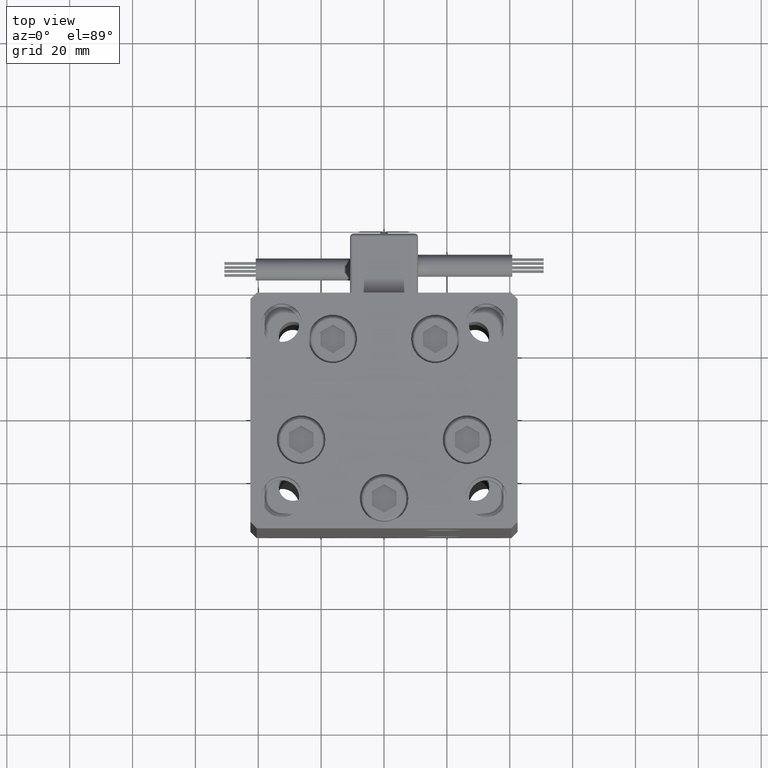
[diagram: clean part render]
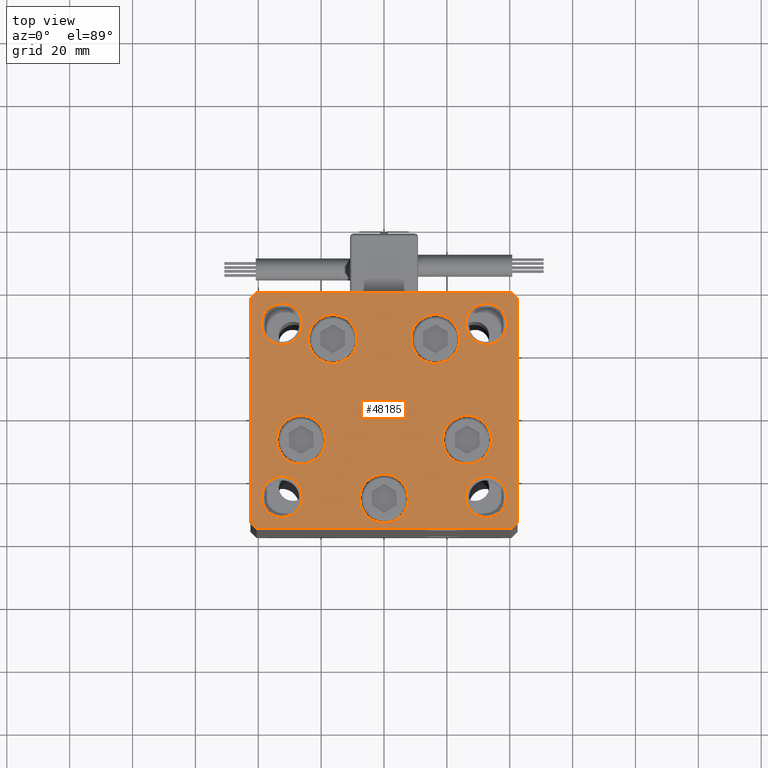
[diagram: same view with one face highlighted and labeled with its STEP entity id]
A machine part, top view. The second image highlights one B-rep face of the part: STEP entity #48185.
In plain terms, the highlighted planar face has unit normal (0, 0, 1).
Its self-contained STEP definition (entity closure, byte-faithful):
#836 = VECTOR ( 'NONE', #3303, 1000.000000000000000 ) ;
#936 = DIRECTION ( 'NONE',  ( 1.000000000000000000, 0.000000000000000000, 0.000000000000000000 ) ) ;
#1135 = DIRECTION ( 'NONE',  ( 0.000000000000000000, -0.000000000000000000, -1.000000000000000000 ) ) ;
#1215 = AXIS2_PLACEMENT_3D ( 'NONE', #31482, #10410, #51187 ) ;
#1286 = ORIENTED_EDGE ( 'NONE', *, *, #23813, .F. ) ;
#1360 = CIRCLE ( 'NONE', #3922, 7.750000000000003553 ) ;
#1438 = AXIS2_PLACEMENT_3D ( 'NONE', #26076, #12776, #41797 ) ;
#1818 = FACE_BOUND ( 'NONE', #10416, .T. ) ;
#1828 = ORIENTED_EDGE ( 'NONE', *, *, #33216, .F. ) ;
#1998 = AXIS2_PLACEMENT_3D ( 'NONE', #46790, #10534, #46258 ) ;
#2179 = AXIS2_PLACEMENT_3D ( 'NONE', #37613, #1135, #50132 ) ;
#2203 = CARTESIAN_POINT ( 'NONE',  ( 42.49999999999992895, 35.50000000000000000, 0.000000000000000000 ) ) ;
#2340 = CIRCLE ( 'NONE', #31270, 7.750000000000000000 ) ;
#2352 = FACE_BOUND ( 'NONE', #44218, .T. ) ;
#2417 = CARTESIAN_POINT ( 'NONE',  ( 26.00000000000000355, -27.49999999999999645, 0.000000000000000000 ) ) ;
#2430 = EDGE_CURVE ( 'NONE', #50446, #17747, #15570, .T. ) ;
#2929 = EDGE_CURVE ( 'NONE', #12566, #20203, #10864, .T. ) ;
#3120 = CARTESIAN_POINT ( 'NONE',  ( -40.50000000000000711, 37.49999999999997868, 0.000000000000000000 ) ) ;
#3303 = DIRECTION ( 'NONE',  ( -1.000000000000000000, -3.426614273534436165E-16, 0.000000000000000000 ) ) ;
#3335 = EDGE_CURVE ( 'NONE', #17747, #39653, #16356, .T. ) ;
#3365 = CARTESIAN_POINT ( 'NONE',  ( 8.572913342905422951, 22.75000000000000000, 0.000000000000000000 ) ) ;
#3629 = CARTESIAN_POINT ( 'NONE',  ( -26.00000000000000355, -27.49999999999999645, 0.000000000000000000 ) ) ;
#3634 = DIRECTION ( 'NONE',  ( 0.000000000000000000, 0.000000000000000000, 1.000000000000000000 ) ) ;
#3922 = AXIS2_PLACEMENT_3D ( 'NONE', #22616, #6640, #35679 ) ;
#3958 = DIRECTION ( 'NONE',  ( 1.000000000000000000, 0.000000000000000000, 0.000000000000000000 ) ) ;
#4627 = EDGE_CURVE ( 'NONE', #5981, #51584, #52368, .T. ) ;
#4935 = EDGE_LOOP ( 'NONE', ( #35485, #10321 ) ) ;
#5246 = AXIS2_PLACEMENT_3D ( 'NONE', #48631, #29423, #12649 ) ;
#5391 = ORIENTED_EDGE ( 'NONE', *, *, #8655, .F. ) ;
#5981 = VERTEX_POINT ( 'NONE', #7321 ) ;
#6162 = CARTESIAN_POINT ( 'NONE',  ( 24.07291334290542650, 22.75000000000000000, 0.000000000000000000 ) ) ;
#6198 = DIRECTION ( 'NONE',  ( -0.7071067811865463515, -0.7071067811865487940, 0.000000000000000000 ) ) ;
#6299 = EDGE_CURVE ( 'NONE', #34208, #50446, #52016, .T. ) ;
#6520 = DIRECTION ( 'NONE',  ( 1.000000000000000000, 0.000000000000000000, 0.000000000000000000 ) ) ;
#6624 = CARTESIAN_POINT ( 'NONE',  ( -39.00000000000000000, -27.49999999999999645, 0.000000000000000000 ) ) ;
#6636 = CARTESIAN_POINT ( 'NONE',  ( 32.50000000000000000, -27.49999999999999645, 0.000000000000000000 ) ) ;
#6640 = DIRECTION ( 'NONE',  ( 0.000000000000000000, -0.000000000000000000, -1.000000000000000000 ) ) ;
#6772 = DIRECTION ( 'NONE',  ( 1.000000000000000000, 0.000000000000000000, 0.000000000000000000 ) ) ;
#7162 = DIRECTION ( 'NONE',  ( 0.000000000000000000, 0.000000000000000000, 1.000000000000000000 ) ) ;
#7321 = CARTESIAN_POINT ( 'NONE',  ( 34.14865316429776954, -9.333333333333328596, 0.000000000000000000 ) ) ;
#7749 = EDGE_CURVE ( 'NONE', #49026, #17196, #2340, .T. ) ;
#7968 = DIRECTION ( 'NONE',  ( 1.000000000000000000, 0.000000000000000000, 0.000000000000000000 ) ) ;
#8028 = VECTOR ( 'NONE', #48085, 1000.000000000000000 ) ;
#8206 = CARTESIAN_POINT ( 'NONE',  ( 39.00000000000000000, 27.49999999999999645, 0.000000000000000000 ) ) ;
#8230 = EDGE_CURVE ( 'NONE', #17196, #49026, #40608, .T. ) ;
#8423 = EDGE_CURVE ( 'NONE', #42111, #46013, #43165, .T. ) ;
#8655 = EDGE_CURVE ( 'NONE', #49922, #46514, #43206, .T. ) ;
#9416 = VERTEX_POINT ( 'NONE', #3120 ) ;
#9484 = AXIS2_PLACEMENT_3D ( 'NONE', #35269, #39534, #6772 ) ;
#9771 = FACE_BOUND ( 'NONE', #18264, .T. ) ;
#10182 = CARTESIAN_POINT ( 'NONE',  ( -40.50000000000000711, 37.49999999999997868, 0.000000000000000000 ) ) ;
#10321 = ORIENTED_EDGE ( 'NONE', *, *, #38664, .F. ) ;
#10345 = LINE ( 'NONE', #22609, #46730 ) ;
#10410 = DIRECTION ( 'NONE',  ( 0.000000000000000000, -0.000000000000000000, -1.000000000000000000 ) ) ;
#10416 = EDGE_LOOP ( 'NONE', ( #49768, #30474 ) ) ;
#10429 = EDGE_CURVE ( 'NONE', #41803, #32636, #20259, .T. ) ;
#10534 = DIRECTION ( 'NONE',  ( 0.000000000000000000, -0.000000000000000000, -1.000000000000000000 ) ) ;
#10864 = LINE ( 'NONE', #48426, #48900 ) ;
#10976 = DIRECTION ( 'NONE',  ( 0.7071067811865474617, 0.7071067811865474617, 0.000000000000000000 ) ) ;
#11166 = CARTESIAN_POINT ( 'NONE',  ( -40.49999999999999289, -37.50000000000002132, 0.000000000000000000 ) ) ;
#11400 = DIRECTION ( 'NONE',  ( 1.000000000000000000, 0.000000000000000000, 0.000000000000000000 ) ) ;
#11744 = VERTEX_POINT ( 'NONE', #3629 ) ;
#11795 = CIRCLE ( 'NONE', #48396, 6.499999999999999112 ) ;
#12179 = CARTESIAN_POINT ( 'NONE',  ( 39.00000000000000000, -27.49999999999999645, 0.000000000000000000 ) ) ;
#12325 = VERTEX_POINT ( 'NONE', #21029 ) ;
#12364 = EDGE_LOOP ( 'NONE', ( #47605, #17339 ) ) ;
#12566 = VERTEX_POINT ( 'NONE', #28627 ) ;
#12649 = DIRECTION ( 'NONE',  ( 1.000000000000000000, 0.000000000000000000, 0.000000000000000000 ) ) ;
#12653 = EDGE_CURVE ( 'NONE', #46514, #49922, #13515, .T. ) ;
#12776 = DIRECTION ( 'NONE',  ( 0.000000000000000000, 0.000000000000000000, 1.000000000000000000 ) ) ;
#12845 = ORIENTED_EDGE ( 'NONE', *, *, #12653, .F. ) ;
#13515 = CIRCLE ( 'NONE', #43322, 6.499999999999999112 ) ;
#13553 = AXIS2_PLACEMENT_3D ( 'NONE', #28710, #24718, #52708 ) ;
#13964 = DIRECTION ( 'NONE',  ( 0.000000000000000000, 0.000000000000000000, 1.000000000000000000 ) ) ;
#14243 = AXIS2_PLACEMENT_3D ( 'NONE', #31337, #3634, #15068 ) ;
#14248 = EDGE_CURVE ( 'NONE', #9416, #26770, #18164, .T. ) ;
#14609 = DIRECTION ( 'NONE',  ( 1.000000000000000000, 1.713307136767217096E-16, 0.000000000000000000 ) ) ;
#15027 = EDGE_LOOP ( 'NONE', ( #41603, #38810 ) ) ;
#15068 = DIRECTION ( 'NONE',  ( 1.000000000000000000, 0.000000000000000000, 0.000000000000000000 ) ) ;
#15136 = DIRECTION ( 'NONE',  ( 0.000000000000000000, -0.000000000000000000, -1.000000000000000000 ) ) ;
#15570 = LINE ( 'NONE', #26766, #8028 ) ;
#16016 = VECTOR ( 'NONE', #6198, 1000.000000000000000 ) ;
#16328 = EDGE_CURVE ( 'NONE', #20203, #34208, #10345, .T. ) ;
#16356 = LINE ( 'NONE', #24891, #46348 ) ;
#16427 = EDGE_CURVE ( 'NONE', #45827, #12325, #21196, .T. ) ;
#16450 = VERTEX_POINT ( 'NONE', #8206 ) ;
#17163 = ORIENTED_EDGE ( 'NONE', *, *, #32988, .T. ) ;
#17184 = ORIENTED_EDGE ( 'NONE', *, *, #49495, .T. ) ;
#17196 = VERTEX_POINT ( 'NONE', #40130 ) ;
#17339 = ORIENTED_EDGE ( 'NONE', *, *, #23635, .T. ) ;
#17346 = AXIS2_PLACEMENT_3D ( 'NONE', #21822, #17817, #29038 ) ;
#17470 = DIRECTION ( 'NONE',  ( 1.000000000000000000, 0.000000000000000000, 0.000000000000000000 ) ) ;
#17747 = VERTEX_POINT ( 'NONE', #2203 ) ;
#17817 = DIRECTION ( 'NONE',  ( 0.000000000000000000, 0.000000000000000000, 1.000000000000000000 ) ) ;
#17958 = CARTESIAN_POINT ( 'NONE',  ( 32.50000000000000000, -27.49999999999999645, 0.000000000000000000 ) ) ;
#18164 = LINE ( 'NONE', #10182, #16016 ) ;
#18264 = EDGE_LOOP ( 'NONE', ( #1286, #1828 ) ) ;
#18527 = CARTESIAN_POINT ( 'NONE',  ( 3.429011037612589276E-15, -28.00000000000000000, 0.000000000000000000 ) ) ;
#18560 = FACE_BOUND ( 'NONE', #12364, .T. ) ;
#18827 = FACE_BOUND ( 'NONE', #19609, .T. ) ;
#18918 = CIRCLE ( 'NONE', #42734, 7.750000000000003553 ) ;
#19138 = ORIENTED_EDGE ( 'NONE', *, *, #2430, .T. ) ;
#19609 = EDGE_LOOP ( 'NONE', ( #30417, #28291 ) ) ;
#19680 = DIRECTION ( 'NONE',  ( 0.000000000000000000, 0.000000000000000000, 1.000000000000000000 ) ) ;
#20203 = VERTEX_POINT ( 'NONE', #11166 ) ;
#20259 = CIRCLE ( 'NONE', #50041, 6.499999999999999112 ) ;
#20794 = CARTESIAN_POINT ( 'NONE',  ( -42.50000000000000711, 35.49999999999997158, 0.000000000000000000 ) ) ;
#21029 = CARTESIAN_POINT ( 'NONE',  ( -18.64865316429776954, -9.333333333333335702, 0.000000000000000000 ) ) ;
#21142 = DIRECTION ( 'NONE',  ( 1.000000000000000000, 0.000000000000000000, 0.000000000000000000 ) ) ;
#21155 = CARTESIAN_POINT ( 'NONE',  ( -32.50000000000000000, 27.50000000000000355, 0.000000000000000000 ) ) ;
#21196 = CIRCLE ( 'NONE', #13553, 7.750000000000000000 ) ;
#21822 = CARTESIAN_POINT ( 'NONE',  ( -32.50000000000000000, -27.49999999999999645, 0.000000000000000000 ) ) ;
#21944 = DIRECTION ( 'NONE',  ( 0.000000000000000000, 0.000000000000000000, 1.000000000000000000 ) ) ;
#22146 = VERTEX_POINT ( 'NONE', #6624 ) ;
#22305 = PLANE ( 'NONE',  #29710 ) ;
#22498 = EDGE_CURVE ( 'NONE', #51584, #5981, #24948, .T. ) ;
#22598 = CARTESIAN_POINT ( 'NONE',  ( 26.00000000000000355, 27.49999999999999645, 0.000000000000000000 ) ) ;
#22609 = CARTESIAN_POINT ( 'NONE',  ( -40.49999999999999289, -37.50000000000002132, 0.000000000000000000 ) ) ;
#22616 = CARTESIAN_POINT ( 'NONE',  ( 16.32291334290542295, 22.75000000000000000, 0.000000000000000000 ) ) ;
#22803 = CARTESIAN_POINT ( 'NONE',  ( 42.50000000000000711, -35.50000000000000000, 0.000000000000000000 ) ) ;
#23134 = ORIENTED_EDGE ( 'NONE', *, *, #14248, .T. ) ;
#23306 = CIRCLE ( 'NONE', #1215, 7.750000000000000000 ) ;
#23635 = EDGE_CURVE ( 'NONE', #12325, #45827, #23959, .T. ) ;
#23813 = EDGE_CURVE ( 'NONE', #11744, #22146, #31616, .T. ) ;
#23925 = CARTESIAN_POINT ( 'NONE',  ( 16.32291334290542295, 22.75000000000000000, 0.000000000000000000 ) ) ;
#23959 = CIRCLE ( 'NONE', #5246, 7.750000000000000000 ) ;
#24650 = EDGE_LOOP ( 'NONE', ( #5391, #12845 ) ) ;
#24718 = DIRECTION ( 'NONE',  ( 0.000000000000000000, -0.000000000000000000, -1.000000000000000000 ) ) ;
#24891 = CARTESIAN_POINT ( 'NONE',  ( 42.49999999999992895, 35.50000000000000000, 0.000000000000000000 ) ) ;
#24948 = CIRCLE ( 'NONE', #1998, 7.750000000000000000 ) ;
#25181 = VERTEX_POINT ( 'NONE', #22598 ) ;
#25277 = EDGE_CURVE ( 'NONE', #38391, #43385, #18918, .T. ) ;
#26034 = FACE_OUTER_BOUND ( 'NONE', #39056, .T. ) ;
#26076 = CARTESIAN_POINT ( 'NONE',  ( 32.50000000000000000, 27.49999999999999645, 0.000000000000000000 ) ) ;
#26133 = CIRCLE ( 'NONE', #49118, 6.499999999999999112 ) ;
#26476 = CARTESIAN_POINT ( 'NONE',  ( -39.00000000000000000, 27.50000000000000355, 0.000000000000000000 ) ) ;
#26605 = EDGE_CURVE ( 'NONE', #26770, #12566, #39270, .T. ) ;
#26766 = CARTESIAN_POINT ( 'NONE',  ( 42.50000000000000711, -35.50000000000000000, 0.000000000000000000 ) ) ;
#26770 = VERTEX_POINT ( 'NONE', #20794 ) ;
#26869 = DIRECTION ( 'NONE',  ( 1.000000000000000000, 0.000000000000000000, 0.000000000000000000 ) ) ;
#27649 = ORIENTED_EDGE ( 'NONE', *, *, #8423, .T. ) ;
#28291 = ORIENTED_EDGE ( 'NONE', *, *, #7749, .T. ) ;
#28627 = CARTESIAN_POINT ( 'NONE',  ( -42.50000000000000000, -35.50000000000000711, 0.000000000000000000 ) ) ;
#28710 = CARTESIAN_POINT ( 'NONE',  ( -26.39865316429776954, -9.333333333333337478, 0.000000000000000000 ) ) ;
#28712 = EDGE_LOOP ( 'NONE', ( #17163, #27649 ) ) ;
#28853 = ORIENTED_EDGE ( 'NONE', *, *, #2929, .T. ) ;
#29031 = ORIENTED_EDGE ( 'NONE', *, *, #3335, .T. ) ;
#29038 = DIRECTION ( 'NONE',  ( 1.000000000000000000, 0.000000000000000000, 0.000000000000000000 ) ) ;
#29423 = DIRECTION ( 'NONE',  ( 0.000000000000000000, -0.000000000000000000, -1.000000000000000000 ) ) ;
#29710 = AXIS2_PLACEMENT_3D ( 'NONE', #42289, #38813, #50808 ) ;
#30417 = ORIENTED_EDGE ( 'NONE', *, *, #8230, .T. ) ;
#30474 = ORIENTED_EDGE ( 'NONE', *, *, #25277, .T. ) ;
#30574 = FACE_BOUND ( 'NONE', #15027, .T. ) ;
#30980 = CIRCLE ( 'NONE', #17346, 6.499999999999999112 ) ;
#31270 = AXIS2_PLACEMENT_3D ( 'NONE', #35180, #50894, #21142 ) ;
#31292 = CARTESIAN_POINT ( 'NONE',  ( -42.50000000000000711, 35.49999999999997158, 0.000000000000000000 ) ) ;
#31337 = CARTESIAN_POINT ( 'NONE',  ( -32.50000000000000000, 27.50000000000000355, 0.000000000000000000 ) ) ;
#31482 = CARTESIAN_POINT ( 'NONE',  ( 3.429011037612589276E-15, -28.00000000000000000, 0.000000000000000000 ) ) ;
#31616 = CIRCLE ( 'NONE', #9484, 6.499999999999999112 ) ;
#32621 = DIRECTION ( 'NONE',  ( -0.7071067811865474617, 0.7071067811865474617, 0.000000000000000000 ) ) ;
#32636 = VERTEX_POINT ( 'NONE', #12179 ) ;
#32755 = CARTESIAN_POINT ( 'NONE',  ( -26.00000000000000355, 27.50000000000000355, 0.000000000000000000 ) ) ;
#32988 = EDGE_CURVE ( 'NONE', #46013, #42111, #23306, .T. ) ;
#33216 = EDGE_CURVE ( 'NONE', #22146, #11744, #30980, .T. ) ;
#34208 = VERTEX_POINT ( 'NONE', #35147 ) ;
#34293 = FACE_BOUND ( 'NONE', #28712, .T. ) ;
#35090 = FACE_BOUND ( 'NONE', #4935, .T. ) ;
#35147 = CARTESIAN_POINT ( 'NONE',  ( 40.50000000000000000, -37.50000000000000711, 0.000000000000000000 ) ) ;
#35180 = CARTESIAN_POINT ( 'NONE',  ( -16.32291334290543006, 22.74999999999999645, 0.000000000000000000 ) ) ;
#35269 = CARTESIAN_POINT ( 'NONE',  ( -32.50000000000000000, -27.49999999999999645, 0.000000000000000000 ) ) ;
#35485 = ORIENTED_EDGE ( 'NONE', *, *, #47209, .F. ) ;
#35679 = DIRECTION ( 'NONE',  ( 1.000000000000000000, 0.000000000000000000, 0.000000000000000000 ) ) ;
#36468 = ORIENTED_EDGE ( 'NONE', *, *, #22498, .T. ) ;
#36644 = ORIENTED_EDGE ( 'NONE', *, *, #4627, .T. ) ;
#37613 = CARTESIAN_POINT ( 'NONE',  ( 26.39865316429776954, -9.333333333333330373, 0.000000000000000000 ) ) ;
#38391 = VERTEX_POINT ( 'NONE', #6162 ) ;
#38549 = FACE_BOUND ( 'NONE', #24650, .T. ) ;
#38662 = ORIENTED_EDGE ( 'NONE', *, *, #6299, .T. ) ;
#38664 = EDGE_CURVE ( 'NONE', #25181, #16450, #52477, .T. ) ;
#38810 = ORIENTED_EDGE ( 'NONE', *, *, #10429, .F. ) ;
#38813 = DIRECTION ( 'NONE',  ( -0.000000000000000000, 0.000000000000000000, 1.000000000000000000 ) ) ;
#39056 = EDGE_LOOP ( 'NONE', ( #28853, #46837, #38662, #19138, #29031, #17184, #23134, #44261 ) ) ;
#39270 = LINE ( 'NONE', #31292, #49478 ) ;
#39534 = DIRECTION ( 'NONE',  ( 0.000000000000000000, 0.000000000000000000, 1.000000000000000000 ) ) ;
#39652 = DIRECTION ( 'NONE',  ( 0.000000000000000000, -0.000000000000000000, -1.000000000000000000 ) ) ;
#39653 = VERTEX_POINT ( 'NONE', #46606 ) ;
#39754 = EDGE_CURVE ( 'NONE', #43385, #38391, #1360, .T. ) ;
#39949 = CARTESIAN_POINT ( 'NONE',  ( 32.50000000000000000, 27.49999999999999645, 0.000000000000000000 ) ) ;
#40130 = CARTESIAN_POINT ( 'NONE',  ( -24.07291334290543006, 22.74999999999999645, 0.000000000000000000 ) ) ;
#40608 = CIRCLE ( 'NONE', #48259, 7.750000000000000000 ) ;
#40633 = CARTESIAN_POINT ( 'NONE',  ( 18.64865316429776954, -9.333333333333330373, 0.000000000000000000 ) ) ;
#41603 = ORIENTED_EDGE ( 'NONE', *, *, #44258, .F. ) ;
#41772 = CARTESIAN_POINT ( 'NONE',  ( -8.572913342905431833, 22.74999999999999645, 0.000000000000000000 ) ) ;
#41797 = DIRECTION ( 'NONE',  ( 1.000000000000000000, 0.000000000000000000, 0.000000000000000000 ) ) ;
#41803 = VERTEX_POINT ( 'NONE', #2417 ) ;
#42111 = VERTEX_POINT ( 'NONE', #45379 ) ;
#42250 = DIRECTION ( 'NONE',  ( 0.000000000000000000, -0.000000000000000000, -1.000000000000000000 ) ) ;
#42289 = CARTESIAN_POINT ( 'NONE',  ( 0.000000000000000000, 0.000000000000000000, 0.000000000000000000 ) ) ;
#42734 = AXIS2_PLACEMENT_3D ( 'NONE', #23925, #15136, #11400 ) ;
#43165 = CIRCLE ( 'NONE', #49962, 7.750000000000000000 ) ;
#43206 = CIRCLE ( 'NONE', #14243, 6.499999999999999112 ) ;
#43322 = AXIS2_PLACEMENT_3D ( 'NONE', #21155, #21944, #936 ) ;
#43385 = VERTEX_POINT ( 'NONE', #3365 ) ;
#44172 = DIRECTION ( 'NONE',  ( 0.7071067811865463515, -0.7071067811865487940, 0.000000000000000000 ) ) ;
#44218 = EDGE_LOOP ( 'NONE', ( #36468, #36644 ) ) ;
#44258 = EDGE_CURVE ( 'NONE', #32636, #41803, #26133, .T. ) ;
#44261 = ORIENTED_EDGE ( 'NONE', *, *, #26605, .T. ) ;
#45379 = CARTESIAN_POINT ( 'NONE',  ( 7.750000000000003553, -28.00000000000000000, 0.000000000000000000 ) ) ;
#45827 = VERTEX_POINT ( 'NONE', #52154 ) ;
#46013 = VERTEX_POINT ( 'NONE', #46510 ) ;
#46258 = DIRECTION ( 'NONE',  ( 1.000000000000000000, 0.000000000000000000, 0.000000000000000000 ) ) ;
#46348 = VECTOR ( 'NONE', #32621, 1000.000000000000114 ) ;
#46510 = CARTESIAN_POINT ( 'NONE',  ( -7.749999999999996447, -28.00000000000000000, 0.000000000000000000 ) ) ;
#46514 = VERTEX_POINT ( 'NONE', #26476 ) ;
#46606 = CARTESIAN_POINT ( 'NONE',  ( 40.49999999999991473, 37.50000000000000711, 0.000000000000000000 ) ) ;
#46730 = VECTOR ( 'NONE', #14609, 1000.000000000000000 ) ;
#46790 = CARTESIAN_POINT ( 'NONE',  ( 26.39865316429776954, -9.333333333333330373, 0.000000000000000000 ) ) ;
#46837 = ORIENTED_EDGE ( 'NONE', *, *, #16328, .T. ) ;
#46947 = CARTESIAN_POINT ( 'NONE',  ( 40.50000000000000000, -37.50000000000000711, 0.000000000000000000 ) ) ;
#47209 = EDGE_CURVE ( 'NONE', #16450, #25181, #11795, .T. ) ;
#47380 = CARTESIAN_POINT ( 'NONE',  ( -16.32291334290543006, 22.74999999999999645, 0.000000000000000000 ) ) ;
#47507 = CARTESIAN_POINT ( 'NONE',  ( 40.49999999999991473, 37.50000000000000711, 0.000000000000000000 ) ) ;
#47605 = ORIENTED_EDGE ( 'NONE', *, *, #16427, .T. ) ;
#48049 = DIRECTION ( 'NONE',  ( 9.773090005503140331E-17, -1.000000000000000000, 0.000000000000000000 ) ) ;
#48085 = DIRECTION ( 'NONE',  ( -1.172770800660376741E-15, 1.000000000000000000, 0.000000000000000000 ) ) ;
#48185 = ADVANCED_FACE ( 'NONE', ( #18827, #1818, #2352, #34293, #18560, #9771, #30574, #35090, #38549, #26034 ), #22305, .T. ) ;
#48189 = VECTOR ( 'NONE', #10976, 1000.000000000000114 ) ;
#48259 = AXIS2_PLACEMENT_3D ( 'NONE', #47380, #39652, #3958 ) ;
#48396 = AXIS2_PLACEMENT_3D ( 'NONE', #39949, #19680, #7968 ) ;
#48426 = CARTESIAN_POINT ( 'NONE',  ( -42.50000000000000000, -35.50000000000000711, 0.000000000000000000 ) ) ;
#48545 = LINE ( 'NONE', #47507, #836 ) ;
#48631 = CARTESIAN_POINT ( 'NONE',  ( -26.39865316429776954, -9.333333333333337478, 0.000000000000000000 ) ) ;
#48900 = VECTOR ( 'NONE', #44172, 1000.000000000000000 ) ;
#49026 = VERTEX_POINT ( 'NONE', #41772 ) ;
#49118 = AXIS2_PLACEMENT_3D ( 'NONE', #17958, #13964, #6520 ) ;
#49478 = VECTOR ( 'NONE', #48049, 1000.000000000000000 ) ;
#49495 = EDGE_CURVE ( 'NONE', #39653, #9416, #48545, .T. ) ;
#49768 = ORIENTED_EDGE ( 'NONE', *, *, #39754, .T. ) ;
#49922 = VERTEX_POINT ( 'NONE', #32755 ) ;
#49962 = AXIS2_PLACEMENT_3D ( 'NONE', #18527, #42250, #17470 ) ;
#50041 = AXIS2_PLACEMENT_3D ( 'NONE', #6636, #7162, #26869 ) ;
#50132 = DIRECTION ( 'NONE',  ( 1.000000000000000000, 0.000000000000000000, 0.000000000000000000 ) ) ;
#50446 = VERTEX_POINT ( 'NONE', #22803 ) ;
#50808 = DIRECTION ( 'NONE',  ( 1.000000000000000000, 0.000000000000000000, 0.000000000000000000 ) ) ;
#50894 = DIRECTION ( 'NONE',  ( 0.000000000000000000, -0.000000000000000000, -1.000000000000000000 ) ) ;
#51187 = DIRECTION ( 'NONE',  ( 1.000000000000000000, 0.000000000000000000, 0.000000000000000000 ) ) ;
#51584 = VERTEX_POINT ( 'NONE', #40633 ) ;
#52016 = LINE ( 'NONE', #46947, #48189 ) ;
#52154 = CARTESIAN_POINT ( 'NONE',  ( -34.14865316429776954, -9.333333333333337478, 0.000000000000000000 ) ) ;
#52368 = CIRCLE ( 'NONE', #2179, 7.750000000000000000 ) ;
#52477 = CIRCLE ( 'NONE', #1438, 6.499999999999999112 ) ;
#52708 = DIRECTION ( 'NONE',  ( 1.000000000000000000, 0.000000000000000000, 0.000000000000000000 ) ) ;